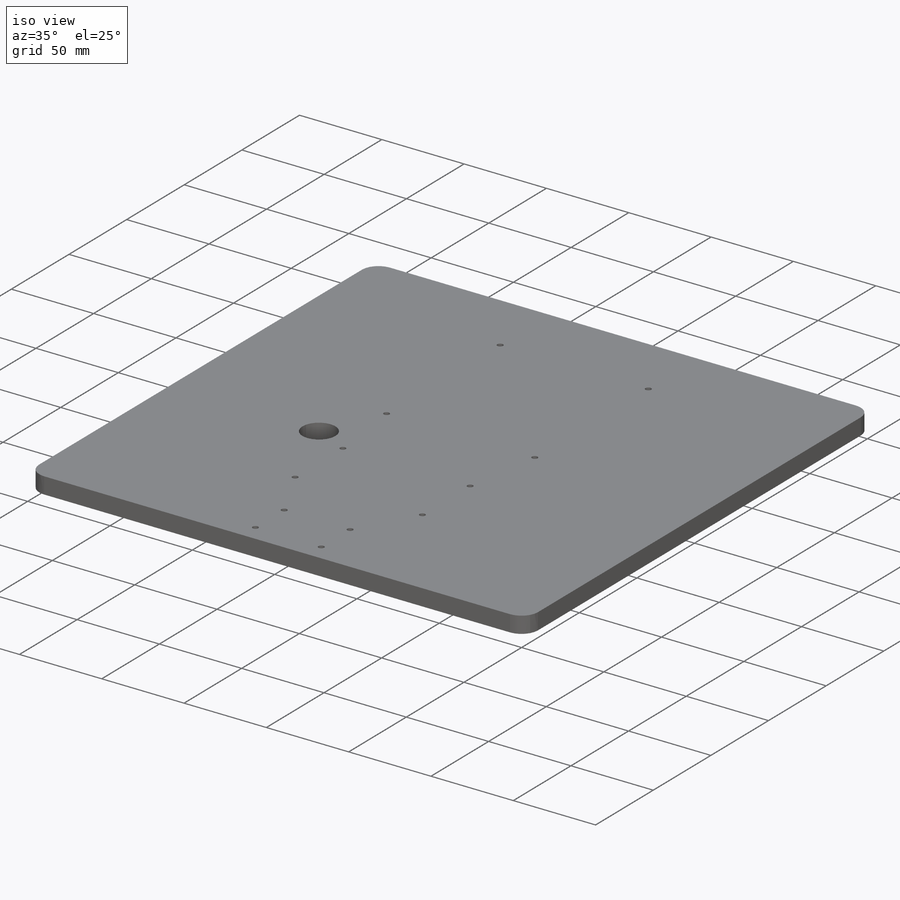
[diagram: iso view]
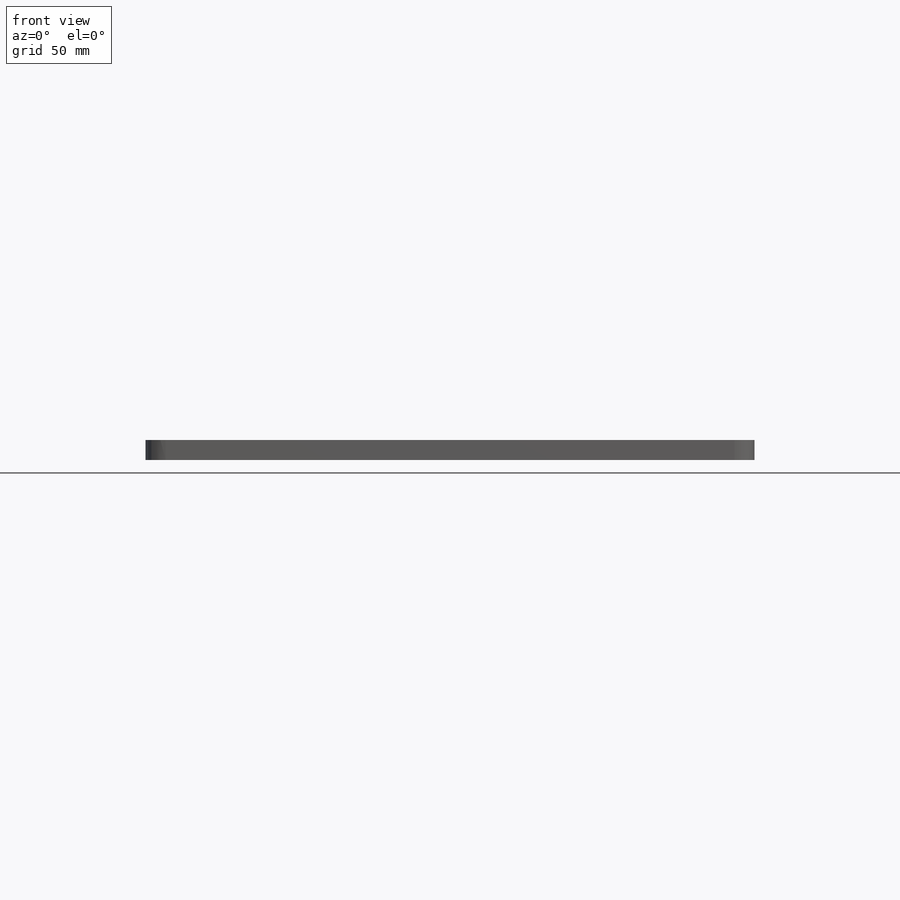
[diagram: front view]
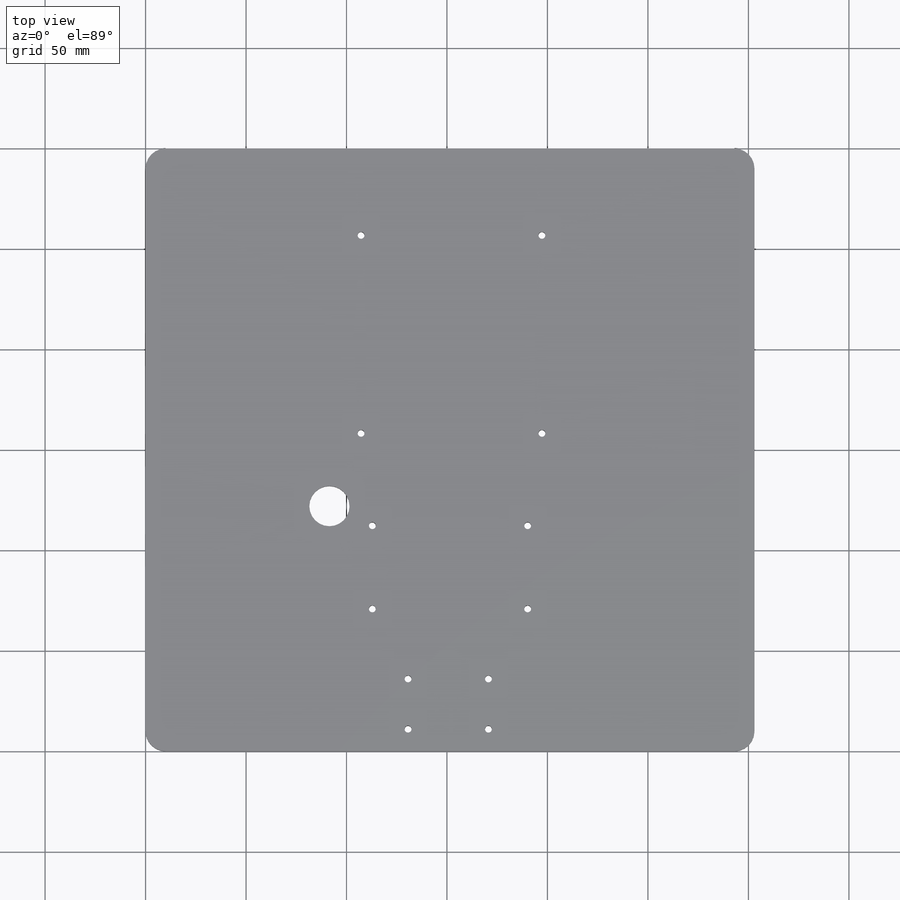
[diagram: top view]
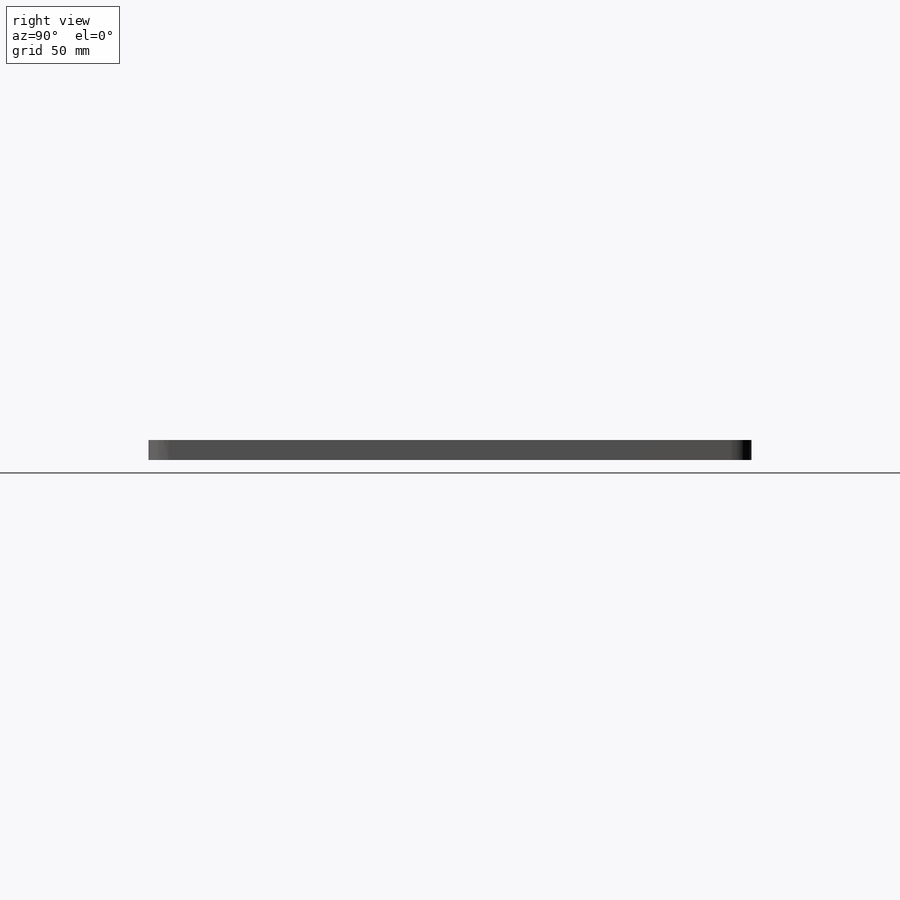
[diagram: right view]
SOLIDWORKS PART (.sldprt)
format: sldprt  version: not decoded by parser v0  size: 418,304 bytes
history: native  units: mm
features: sketch x25, sheet_metal_op x6, hole x3, plane x2, material x1, fillet x1, cut_extrude x1 + 5 further entries (+12 scaffold rows collapsed; 5 parser-record rows omitted)
feature tree (61):
  scaffold x12  (default folders/planes/origin — collapsed)
  material  "Plain Carbon Steel"
  sketch  "Sketch1"  dims[c1.D1=~84.130859mm c1.D2=~59.610307mm c2.D1=300.0mm c2.D2=303.0mm c2.D3=~84.22893mm c3.D1=0.762mm c3.D2=0.389 c3.D3=1.1938mm c3.D6=500.0mm]
  sheet_metal_op  "Base-Flange1"
  plane  "Plane1"
  fillet  "Fillet1"  Radius=10mm
  sketch  "Sketch18"  dims[c1.D1=0.0mm c1.D2=60.0mm c1.D3=160.0mm c1.D4=60.0mm c1.D5=80.0mm c2.D2=130.0mm c2.D4=65.0mm]
  sketch  "RetrievalArm"  dims[c1.D1=~14.466034mm c1.D3=135.0mm c2.D1=25.0mm c2.D2=25.0mm]
  plane  "Plane4"  Offset=203.2mm
  sketch  "Sketch24"  dims[D1=60.875mm D2=40.0mm D3=121.75mm D4=0.0mm D5=60.0mm]
  hole  "M3 Clearance Hole1"  Diameter=3.4mm Depth=50mm
  sketch  "Sketch26"
  sketch  "Sketch25"  dims[hole-wizard template sketch: 47 standard entries collapsed; hole parameters kept: c15.Hole Depth=50.0mm c15.D3=~14.816244mm c15.Drill Angle=118.0deg]
  sketch  "WireHole"  dims[D1=122.0mm D2=60.0mm D3=~114.202671mm]
  hole  "M3 Clearance Hole2"  Diameter=3.4mm Depth=28.71mm
  sketch  "Sketch28"
  sketch  "Sketch27"  dims[hole-wizard template sketch: 47 standard entries collapsed; hole parameters kept: c15.Hole Depth=28.71mm c15.D3=~14.816244mm c15.Drill Angle=118.0deg]
  sketch  "Sketch30"  dims[D1=61.3mm D2=91.3mm D3=45.65mm D4=20.0mm]
  cut_extrude  "Cut-Extrude1"  Depth=10mm
  hole  "M3 Clearance Hole3"  Diameter=3.4mm Depth=28.71mm
  sketch  "Sketch32"
  sketch  "Sketch31"  dims[hole-wizard template sketch: 47 standard entries collapsed; hole parameters kept: c15.Hole Depth=28.71mm c15.D3=~14.816244mm c15.Drill Angle=118.0deg]
  sketch  "Sketch33"  dims[D1=81.5mm]
  sketch  "Bend-Lines1"
  sketch  "Bounding-Box1"
  sheet_metal_op  "Sheet-Metal(1)"
  "Flat-Pattern(1)"
  sketch  "Bend-Lines2"
  sketch  "Bounding-Box2"
  parser-record x5  (decoder bookkeeping rows leaked as tree rows — omitted from the tree; the rows remain in map.json)
  sheet_metal_op  "Sheet-Metal(15)"
  "Flat-Pattern(1)"
  sketch  "Bend-Lines2"
  sketch  "Bounding-Box2"
  sheet_metal_op  "Sheet-Metal(16)"
  "Flat-Pattern(1)"
  sketch  "Bend-Lines2"
  sketch  "Bounding-Box2"
  sheet_metal_op  "Sheet-Metal(17)"
  "Flat-Pattern(1)"
  sketch  "Bend-Lines2"
  sketch  "Bounding-Box2"
  sheet_metal_op  "Sheet-Metal(18)"
  "Flat-Pattern(1)"
  sketch  "Bend-Lines2"
  sketch  "Bounding-Box2"
decode coverage: 15 of 36 modeling features carry decoded parameters; 5 rows unclassified (native names shown)
note: ~ marks probable driven/reference dimensions
note: suppression state not decoded; provenance and decode notes live in map.json
